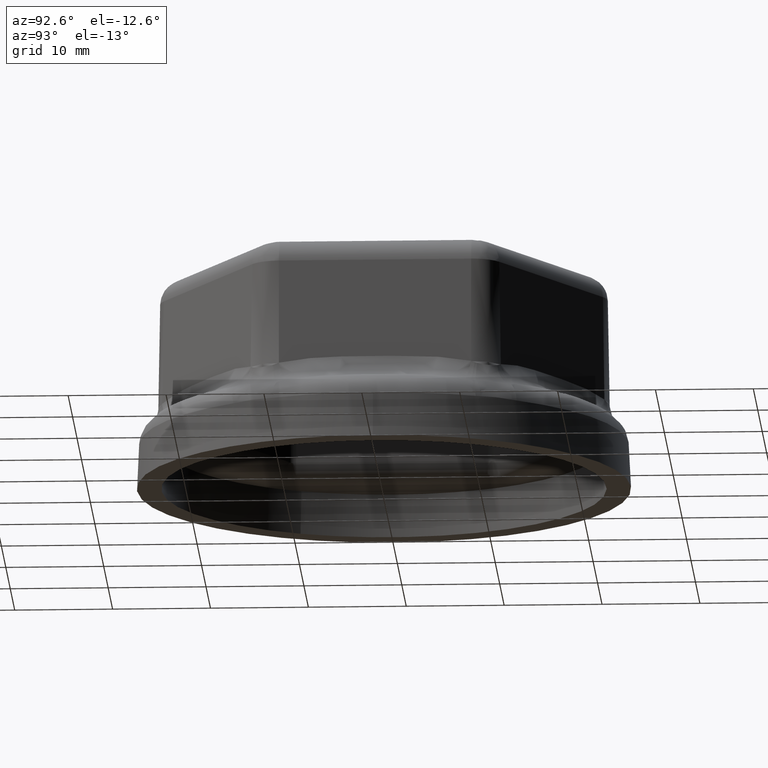
[diagram: clean part render]
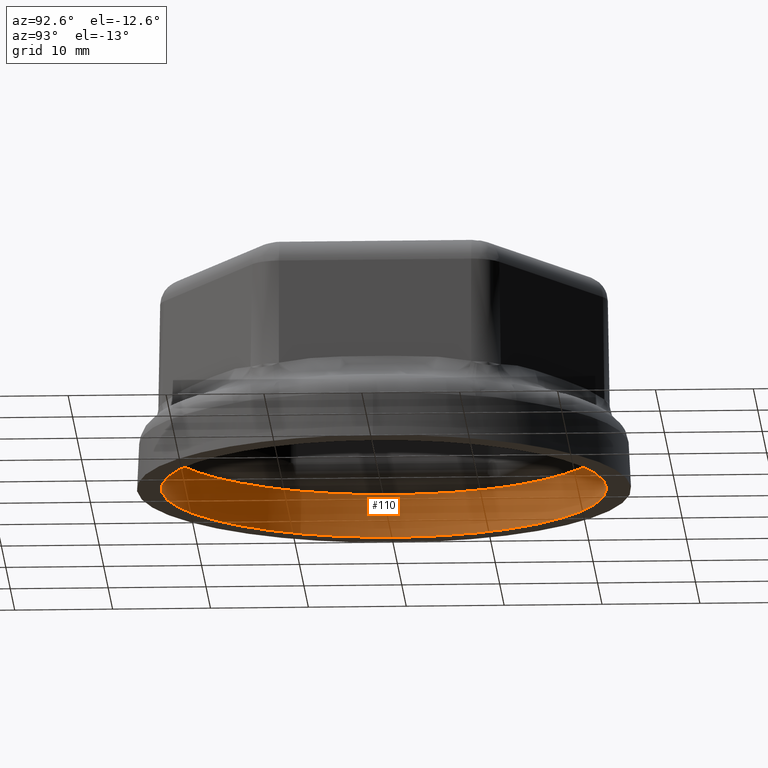
[diagram: same view with one face highlighted and labeled with its STEP entity id]
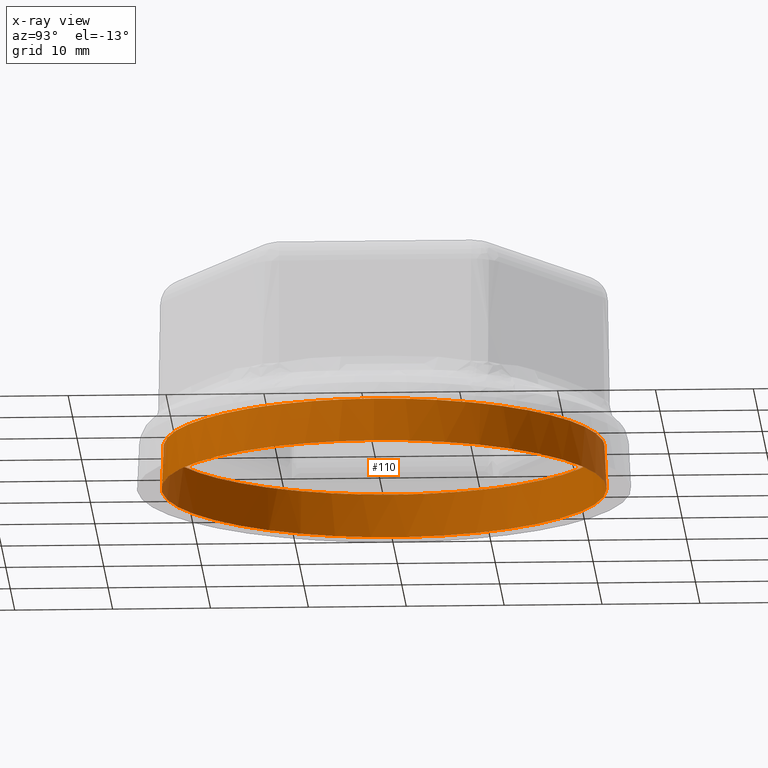
[diagram: x-ray of the same camera — body ghosted, the highlighted face saturated]
A machine part, auxiliary view. The second image highlights one B-rep face of the part: STEP entity #110.
The next image is the same camera in x-ray: the body ghosted, the highlighted face saturated — about 0% of this face is hidden behind the body in this view.
In plain terms, the highlighted conical surface has half-angle 3 deg.
Its self-contained STEP definition (entity closure, byte-faithful):
#110 = ADVANCED_FACE( '', ( #277, #278 ), #279, .F. );
#277 = FACE_OUTER_BOUND( '', #1575, .T. );
#278 = FACE_BOUND( '', #1576, .T. );
#279 = CONICAL_SURFACE( '', #1577, 22.5000000000000, 0.0523598775598299 );
#1575 = EDGE_LOOP( '', ( #5710 ) );
#1576 = EDGE_LOOP( '', ( #5711, #5712, #5713, #5714, #5715, #5716, #5717, #5718, #5719, #5720, #5721, #5722, #5723, #5724, #5725, #5726, #5727, #5728, #5729, #5730, #5731, #5732, #5733, #5734 ) );
#1577 = AXIS2_PLACEMENT_3D( '', #5735, #5736, #5737 );
#5710 = ORIENTED_EDGE( '', *, *, #6353, .F. );
#5711 = ORIENTED_EDGE( '', *, *, #6312, .T. );
#5712 = ORIENTED_EDGE( '', *, *, #6317, .T. );
#5713 = ORIENTED_EDGE( '', *, *, #6326, .T. );
#5714 = ORIENTED_EDGE( '', *, *, #6354, .T. );
#5715 = ORIENTED_EDGE( '', *, *, #6339, .T. );
#5716 = ORIENTED_EDGE( '', *, *, #6345, .T. );
#5717 = ORIENTED_EDGE( '', *, *, #6352, .T. );
#5718 = ORIENTED_EDGE( '', *, *, #6355, .T. );
#5719 = ORIENTED_EDGE( '', *, *, #6343, .T. );
#5720 = ORIENTED_EDGE( '', *, *, #6337, .T. );
#5721 = ORIENTED_EDGE( '', *, *, #6329, .T. );
#5722 = ORIENTED_EDGE( '', *, *, #6356, .T. );
#5723 = ORIENTED_EDGE( '', *, *, #6315, .T. );
#5724 = ORIENTED_EDGE( '', *, *, #6310, .T. );
#5725 = ORIENTED_EDGE( '', *, *, #6306, .T. );
#5726 = ORIENTED_EDGE( '', *, *, #6357, .T. );
#5727 = ORIENTED_EDGE( '', *, *, #6297, .T. );
#5728 = ORIENTED_EDGE( '', *, *, #6295, .T. );
#5729 = ORIENTED_EDGE( '', *, *, #6358, .T. );
#5730 = ORIENTED_EDGE( '', *, *, #6359, .T. );
#5731 = ORIENTED_EDGE( '', *, *, #6290, .T. );
#5732 = ORIENTED_EDGE( '', *, *, #6299, .T. );
#5733 = ORIENTED_EDGE( '', *, *, #6304, .T. );
#5734 = ORIENTED_EDGE( '', *, *, #6360, .T. );
#5735 = CARTESIAN_POINT( '', ( 0.000000000000000, 0.000000000000000, 4.40000000000000 ) );
#5736 = DIRECTION( '', ( 0.000000000000000, 0.000000000000000, -1.00000000000000 ) );
#5737 = DIRECTION( '', ( -1.00000000000000, 0.000000000000000, 0.000000000000000 ) );
#6290 = EDGE_CURVE( '', #6632, #6630, #6633, .T. );
#6295 = EDGE_CURVE( '', #6635, #6638, #6640, .T. );
#6297 = EDGE_CURVE( '', #6641, #6635, #6643, .T. );
#6299 = EDGE_CURVE( '', #6630, #6644, #6646, .T. );
#6304 = EDGE_CURVE( '', #6644, #6651, #6653, .T. );
#6306 = EDGE_CURVE( '', #6654, #6648, #6656, .T. );
#6310 = EDGE_CURVE( '', #6660, #6654, #6662, .T. );
#6312 = EDGE_CURVE( '', #6657, #6663, #6665, .T. );
#6315 = EDGE_CURVE( '', #6667, #6660, #6670, .T. );
#6317 = EDGE_CURVE( '', #6663, #6671, #6674, .T. );
#6326 = EDGE_CURVE( '', #6671, #6685, #6688, .T. );
#6329 = EDGE_CURVE( '', #6690, #6681, #6692, .T. );
#6337 = EDGE_CURVE( '', #6702, #6690, #6705, .T. );
#6339 = EDGE_CURVE( '', #6698, #6706, #6708, .T. );
#6343 = EDGE_CURVE( '', #6711, #6702, #6714, .T. );
#6345 = EDGE_CURVE( '', #6706, #6715, #6718, .T. );
#6352 = EDGE_CURVE( '', #6715, #6724, #6727, .T. );
#6353 = EDGE_CURVE( '', #6728, #6728, #6729, .T. );
#6354 = EDGE_CURVE( '', #6685, #6698, #6730, .T. );
#6355 = EDGE_CURVE( '', #6724, #6711, #6731, .T. );
#6356 = EDGE_CURVE( '', #6681, #6667, #6732, .T. );
#6357 = EDGE_CURVE( '', #6648, #6641, #6733, .T. );
#6358 = EDGE_CURVE( '', #6638, #6734, #6735, .T. );
#6359 = EDGE_CURVE( '', #6734, #6632, #6736, .T. );
#6360 = EDGE_CURVE( '', #6651, #6657, #6737, .T. );
#6630 = VERTEX_POINT( '', #7282 );
#6632 = VERTEX_POINT( '', #7284 );
#6633 = CIRCLE( '', #7285, 22.5000000000000 );
#6635 = VERTEX_POINT( '', #7287 );
#6638 = VERTEX_POINT( '', #7321 );
#6640 = CIRCLE( '', #7323, 22.5000000000000 );
#6641 = VERTEX_POINT( '', #7324 );
#6643 = CIRCLE( '', #7326, 22.5000000000000 );
#6644 = VERTEX_POINT( '', #7327 );
#6646 = CIRCLE( '', #7329, 22.5000000000000 );
#6648 = VERTEX_POINT( '', #7362 );
#6651 = VERTEX_POINT( '', #7366 );
#6653 = CIRCLE( '', #7368, 22.5000000000000 );
#6654 = VERTEX_POINT( '', #7369 );
#6656 = CIRCLE( '', #7371, 22.5000000000000 );
#6657 = VERTEX_POINT( '', #7372 );
#6660 = VERTEX_POINT( '', #7376 );
#6662 = CIRCLE( '', #7378, 22.5000000000000 );
#6663 = VERTEX_POINT( '', #7379 );
#6665 = CIRCLE( '', #7381, 22.5000000000000 );
#6667 = VERTEX_POINT( '', #7383 );
#6670 = CIRCLE( '', #7389, 22.5000000000000 );
#6671 = VERTEX_POINT( '', #7390 );
#6674 = CIRCLE( '', #7393, 22.5000000000000 );
#6681 = VERTEX_POINT( '', #7436 );
#6685 = VERTEX_POINT( '', #7442 );
#6688 = CIRCLE( '', #7445, 22.5000000000000 );
#6690 = VERTEX_POINT( '', #7450 );
#6692 = CIRCLE( '', #7452, 22.5000000000000 );
#6698 = VERTEX_POINT( '', #7463 );
#6702 = VERTEX_POINT( '', #7468 );
#6705 = CIRCLE( '', #7502, 22.5000000000000 );
#6706 = VERTEX_POINT( '', #7503 );
#6708 = CIRCLE( '', #7505, 22.5000000000000 );
#6711 = VERTEX_POINT( '', #7509 );
#6714 = CIRCLE( '', #7515, 22.5000000000000 );
#6715 = VERTEX_POINT( '', #7516 );
#6718 = CIRCLE( '', #7519, 22.5000000000000 );
#6724 = VERTEX_POINT( '', #7561 );
#6727 = CIRCLE( '', #7565, 22.5000000000000 );
#6728 = VERTEX_POINT( '', #7566 );
#6729 = CIRCLE( '', #7567, 22.7305942288454 );
#6730 = CIRCLE( '', #7568, 22.5000000000000 );
#6731 = CIRCLE( '', #7569, 22.5000000000000 );
#6732 = CIRCLE( '', #7570, 22.5000000000000 );
#6733 = CIRCLE( '', #7571, 22.5000000000000 );
#6734 = VERTEX_POINT( '', #7572 );
#6735 = CIRCLE( '', #7573, 22.5000000000000 );
#6736 = CIRCLE( '', #7574, 22.5000000000000 );
#6737 = CIRCLE( '', #7575, 22.5000000000000 );
#7282 = CARTESIAN_POINT( '', ( 18.5595269499035, -12.7198254467506, 4.40000000000000 ) );
#7284 = CARTESIAN_POINT( '', ( 18.3418630919353, -13.0317327442172, 4.40000000000000 ) );
#7285 = AXIS2_PLACEMENT_3D( '', #9441, #9442, #9443 );
#7287 = CARTESIAN_POINT( '', ( -1.73592849363800, -22.4329345442137, 4.40000000000000 ) );
#7321 = CARTESIAN_POINT( '', ( 1.73592849363798, -22.4329345442137, 4.40000000000000 ) );
#7323 = AXIS2_PLACEMENT_3D( '', #9453, #9454, #9455 );
#7324 = CARTESIAN_POINT( '', ( -2.11488006585394, -22.4003857624607, 4.40000000000000 ) );
#7326 = AXIS2_PLACEMENT_3D( '', #9459, #9460, #9461 );
#7327 = CARTESIAN_POINT( '', ( 20.2954554435415, -9.71310909746310, 4.40000000000000 ) );
#7329 = AXIS2_PLACEMENT_3D( '', #9465, #9466, #9467 );
#7362 = CARTESIAN_POINT( '', ( -18.3418630919353, -13.0317327442172, 4.40000000000000 ) );
#7366 = CARTESIAN_POINT( '', ( 20.4567431577892, -9.36865301824355, 4.40000000000000 ) );
#7368 = AXIS2_PLACEMENT_3D( '', #9475, #9476, #9477 );
#7369 = CARTESIAN_POINT( '', ( -18.5595269499035, -12.7198254467506, 4.40000000000000 ) );
#7371 = AXIS2_PLACEMENT_3D( '', #9481, #9482, #9483 );
#7372 = CARTESIAN_POINT( '', ( 20.4567431577892, 9.36865301824353, 4.40000000000000 ) );
#7376 = CARTESIAN_POINT( '', ( -20.2954554435415, -9.71310909746308, 4.40000000000000 ) );
#7378 = AXIS2_PLACEMENT_3D( '', #9491, #9492, #9493 );
#7379 = CARTESIAN_POINT( '', ( 20.2954554435415, 9.71310909746308, 4.40000000000000 ) );
#7381 = AXIS2_PLACEMENT_3D( '', #9497, #9498, #9499 );
#7383 = CARTESIAN_POINT( '', ( -20.4567431577892, -9.36865301824354, 4.40000000000000 ) );
#7389 = AXIS2_PLACEMENT_3D( '', #9503, #9504, #9505 );
#7390 = CARTESIAN_POINT( '', ( 18.5595269499035, 12.7198254467506, 4.40000000000000 ) );
#7393 = AXIS2_PLACEMENT_3D( '', #9509, #9510, #9511 );
#7436 = CARTESIAN_POINT( '', ( -20.4567431577892, 9.36865301824354, 4.40000000000000 ) );
#7442 = CARTESIAN_POINT( '', ( 18.3418630919353, 13.0317327442172, 4.40000000000000 ) );
#7445 = AXIS2_PLACEMENT_3D( '', #9522, #9523, #9524 );
#7450 = CARTESIAN_POINT( '', ( -20.2954554435415, 9.71310909746308, 4.40000000000000 ) );
#7452 = AXIS2_PLACEMENT_3D( '', #9528, #9529, #9530 );
#7463 = CARTESIAN_POINT( '', ( 2.11488006585394, 22.4003857624607, 4.40000000000000 ) );
#7468 = CARTESIAN_POINT( '', ( -18.5595269499035, 12.7198254467506, 4.40000000000000 ) );
#7502 = AXIS2_PLACEMENT_3D( '', #9540, #9541, #9542 );
#7503 = CARTESIAN_POINT( '', ( 1.73592849363800, 22.4329345442137, 4.40000000000000 ) );
#7505 = AXIS2_PLACEMENT_3D( '', #9546, #9547, #9548 );
#7509 = CARTESIAN_POINT( '', ( -18.3418630919353, 13.0317327442172, 4.40000000000000 ) );
#7515 = AXIS2_PLACEMENT_3D( '', #9553, #9554, #9555 );
#7516 = CARTESIAN_POINT( '', ( -1.73592849363800, 22.4329345442137, 4.40000000000000 ) );
#7519 = AXIS2_PLACEMENT_3D( '', #9559, #9560, #9561 );
#7561 = CARTESIAN_POINT( '', ( -2.11488006585396, 22.4003857624607, 4.40000000000000 ) );
#7565 = AXIS2_PLACEMENT_3D( '', #9568, #9569, #9570 );
#7566 = CARTESIAN_POINT( '', ( 22.7305942288454, 0.000000000000000, 3.46944695195361E-015 ) );
#7567 = AXIS2_PLACEMENT_3D( '', #9571, #9572, #9573 );
#7568 = AXIS2_PLACEMENT_3D( '', #9574, #9575, #9576 );
#7569 = AXIS2_PLACEMENT_3D( '', #9577, #9578, #9579 );
#7570 = AXIS2_PLACEMENT_3D( '', #9580, #9581, #9582 );
#7571 = AXIS2_PLACEMENT_3D( '', #9583, #9584, #9585 );
#7572 = CARTESIAN_POINT( '', ( 2.11488006585394, -22.4003857624607, 4.40000000000000 ) );
#7573 = AXIS2_PLACEMENT_3D( '', #9586, #9587, #9588 );
#7574 = AXIS2_PLACEMENT_3D( '', #9589, #9590, #9591 );
#7575 = AXIS2_PLACEMENT_3D( '', #9592, #9593, #9594 );
#9441 = CARTESIAN_POINT( '', ( 0.000000000000000, 0.000000000000000, 4.40000000000000 ) );
#9442 = DIRECTION( '', ( 0.000000000000000, 0.000000000000000, 1.00000000000000 ) );
#9443 = DIRECTION( '', ( 1.00000000000000, 0.000000000000000, 0.000000000000000 ) );
#9453 = CARTESIAN_POINT( '', ( 0.000000000000000, 0.000000000000000, 4.40000000000000 ) );
#9454 = DIRECTION( '', ( 0.000000000000000, 0.000000000000000, 1.00000000000000 ) );
#9455 = DIRECTION( '', ( 1.00000000000000, 0.000000000000000, 0.000000000000000 ) );
#9459 = CARTESIAN_POINT( '', ( 0.000000000000000, 0.000000000000000, 4.40000000000000 ) );
#9460 = DIRECTION( '', ( 0.000000000000000, 0.000000000000000, 1.00000000000000 ) );
#9461 = DIRECTION( '', ( 1.00000000000000, 0.000000000000000, 0.000000000000000 ) );
#9465 = CARTESIAN_POINT( '', ( 0.000000000000000, 0.000000000000000, 4.40000000000000 ) );
#9466 = DIRECTION( '', ( 0.000000000000000, 0.000000000000000, 1.00000000000000 ) );
#9467 = DIRECTION( '', ( 1.00000000000000, 0.000000000000000, 0.000000000000000 ) );
#9475 = CARTESIAN_POINT( '', ( 0.000000000000000, 0.000000000000000, 4.40000000000000 ) );
#9476 = DIRECTION( '', ( 0.000000000000000, 0.000000000000000, 1.00000000000000 ) );
#9477 = DIRECTION( '', ( 1.00000000000000, 0.000000000000000, 0.000000000000000 ) );
#9481 = CARTESIAN_POINT( '', ( 0.000000000000000, 0.000000000000000, 4.40000000000000 ) );
#9482 = DIRECTION( '', ( 0.000000000000000, 0.000000000000000, 1.00000000000000 ) );
#9483 = DIRECTION( '', ( 1.00000000000000, 0.000000000000000, 0.000000000000000 ) );
#9491 = CARTESIAN_POINT( '', ( 0.000000000000000, 0.000000000000000, 4.40000000000000 ) );
#9492 = DIRECTION( '', ( 0.000000000000000, 0.000000000000000, 1.00000000000000 ) );
#9493 = DIRECTION( '', ( 1.00000000000000, 0.000000000000000, 0.000000000000000 ) );
#9497 = CARTESIAN_POINT( '', ( 0.000000000000000, 0.000000000000000, 4.40000000000000 ) );
#9498 = DIRECTION( '', ( 0.000000000000000, 0.000000000000000, 1.00000000000000 ) );
#9499 = DIRECTION( '', ( 1.00000000000000, 0.000000000000000, 0.000000000000000 ) );
#9503 = CARTESIAN_POINT( '', ( 0.000000000000000, 0.000000000000000, 4.40000000000000 ) );
#9504 = DIRECTION( '', ( 0.000000000000000, 0.000000000000000, 1.00000000000000 ) );
#9505 = DIRECTION( '', ( 1.00000000000000, 0.000000000000000, 0.000000000000000 ) );
#9509 = CARTESIAN_POINT( '', ( 0.000000000000000, 0.000000000000000, 4.40000000000000 ) );
#9510 = DIRECTION( '', ( 0.000000000000000, 0.000000000000000, 1.00000000000000 ) );
#9511 = DIRECTION( '', ( 1.00000000000000, 0.000000000000000, 0.000000000000000 ) );
#9522 = CARTESIAN_POINT( '', ( 0.000000000000000, 0.000000000000000, 4.40000000000000 ) );
#9523 = DIRECTION( '', ( 0.000000000000000, 0.000000000000000, 1.00000000000000 ) );
#9524 = DIRECTION( '', ( 1.00000000000000, 0.000000000000000, 0.000000000000000 ) );
#9528 = CARTESIAN_POINT( '', ( 0.000000000000000, 0.000000000000000, 4.40000000000000 ) );
#9529 = DIRECTION( '', ( 0.000000000000000, 0.000000000000000, 1.00000000000000 ) );
#9530 = DIRECTION( '', ( 1.00000000000000, 0.000000000000000, 0.000000000000000 ) );
#9540 = CARTESIAN_POINT( '', ( 0.000000000000000, 0.000000000000000, 4.40000000000000 ) );
#9541 = DIRECTION( '', ( 0.000000000000000, 0.000000000000000, 1.00000000000000 ) );
#9542 = DIRECTION( '', ( 1.00000000000000, 0.000000000000000, 0.000000000000000 ) );
#9546 = CARTESIAN_POINT( '', ( 0.000000000000000, 0.000000000000000, 4.40000000000000 ) );
#9547 = DIRECTION( '', ( 0.000000000000000, 0.000000000000000, 1.00000000000000 ) );
#9548 = DIRECTION( '', ( 1.00000000000000, 0.000000000000000, 0.000000000000000 ) );
#9553 = CARTESIAN_POINT( '', ( 0.000000000000000, 0.000000000000000, 4.40000000000000 ) );
#9554 = DIRECTION( '', ( 0.000000000000000, 0.000000000000000, 1.00000000000000 ) );
#9555 = DIRECTION( '', ( 1.00000000000000, 0.000000000000000, 0.000000000000000 ) );
#9559 = CARTESIAN_POINT( '', ( 0.000000000000000, 0.000000000000000, 4.40000000000000 ) );
#9560 = DIRECTION( '', ( 0.000000000000000, 0.000000000000000, 1.00000000000000 ) );
#9561 = DIRECTION( '', ( 1.00000000000000, 0.000000000000000, 0.000000000000000 ) );
#9568 = CARTESIAN_POINT( '', ( 0.000000000000000, 0.000000000000000, 4.40000000000000 ) );
#9569 = DIRECTION( '', ( 0.000000000000000, 0.000000000000000, 1.00000000000000 ) );
#9570 = DIRECTION( '', ( 1.00000000000000, 0.000000000000000, 0.000000000000000 ) );
#9571 = CARTESIAN_POINT( '', ( 0.000000000000000, 0.000000000000000, 3.46944695195361E-015 ) );
#9572 = DIRECTION( '', ( 0.000000000000000, 0.000000000000000, 1.00000000000000 ) );
#9573 = DIRECTION( '', ( 1.00000000000000, 0.000000000000000, 0.000000000000000 ) );
#9574 = CARTESIAN_POINT( '', ( 0.000000000000000, 0.000000000000000, 4.40000000000000 ) );
#9575 = DIRECTION( '', ( 0.000000000000000, 0.000000000000000, 1.00000000000000 ) );
#9576 = DIRECTION( '', ( 1.00000000000000, 0.000000000000000, 0.000000000000000 ) );
#9577 = CARTESIAN_POINT( '', ( 0.000000000000000, 0.000000000000000, 4.40000000000000 ) );
#9578 = DIRECTION( '', ( 0.000000000000000, 0.000000000000000, 1.00000000000000 ) );
#9579 = DIRECTION( '', ( 1.00000000000000, 0.000000000000000, 0.000000000000000 ) );
#9580 = CARTESIAN_POINT( '', ( 0.000000000000000, 0.000000000000000, 4.40000000000000 ) );
#9581 = DIRECTION( '', ( 0.000000000000000, 0.000000000000000, 1.00000000000000 ) );
#9582 = DIRECTION( '', ( 1.00000000000000, 0.000000000000000, 0.000000000000000 ) );
#9583 = CARTESIAN_POINT( '', ( 0.000000000000000, 0.000000000000000, 4.40000000000000 ) );
#9584 = DIRECTION( '', ( 0.000000000000000, 0.000000000000000, 1.00000000000000 ) );
#9585 = DIRECTION( '', ( 1.00000000000000, 0.000000000000000, 0.000000000000000 ) );
#9586 = CARTESIAN_POINT( '', ( 0.000000000000000, 0.000000000000000, 4.40000000000000 ) );
#9587 = DIRECTION( '', ( 0.000000000000000, 0.000000000000000, 1.00000000000000 ) );
#9588 = DIRECTION( '', ( 1.00000000000000, 0.000000000000000, 0.000000000000000 ) );
#9589 = CARTESIAN_POINT( '', ( 0.000000000000000, 0.000000000000000, 4.40000000000000 ) );
#9590 = DIRECTION( '', ( 0.000000000000000, 0.000000000000000, 1.00000000000000 ) );
#9591 = DIRECTION( '', ( 1.00000000000000, 0.000000000000000, 0.000000000000000 ) );
#9592 = CARTESIAN_POINT( '', ( 0.000000000000000, 0.000000000000000, 4.40000000000000 ) );
#9593 = DIRECTION( '', ( 0.000000000000000, 0.000000000000000, 1.00000000000000 ) );
#9594 = DIRECTION( '', ( 1.00000000000000, 0.000000000000000, 0.000000000000000 ) );